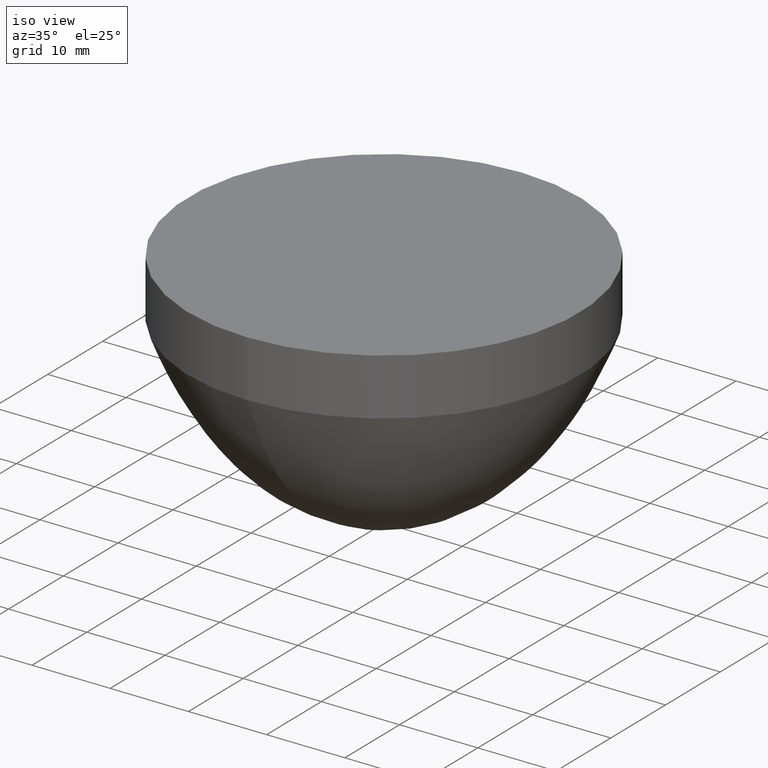
[diagram: clean part render]
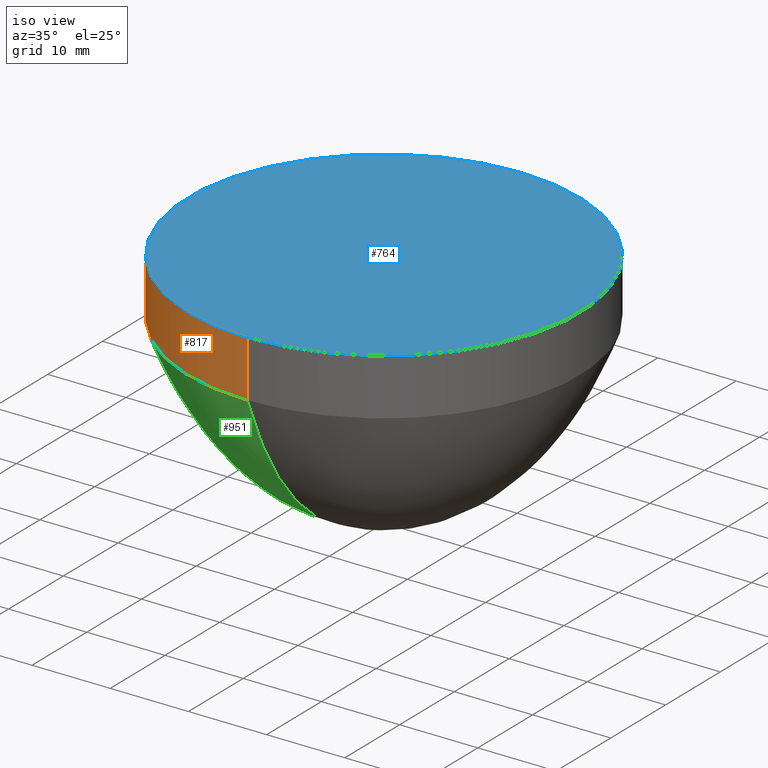
[diagram: same view with three faces highlighted in distinct colors, each labeled with its STEP entity id]
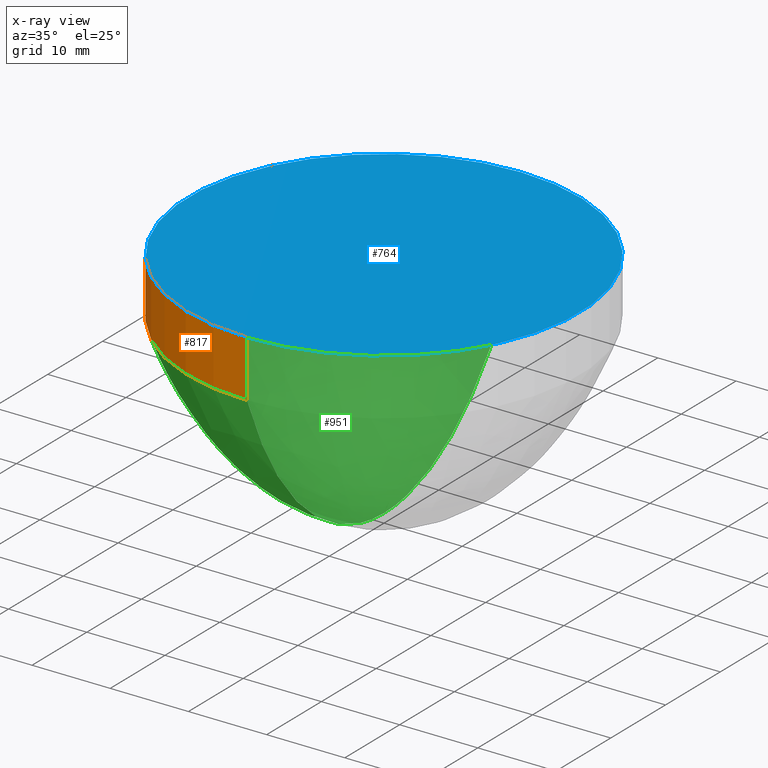
[diagram: x-ray of the same camera — body ghosted, the three highlighted faces saturated]
A machine part, iso view with three faces highlighted in distinct colors.
The next image is the same camera in x-ray (body ghosted, the three faces saturated) — at least one of them is partly hidden behind the body in this view.
Their STEP definitions:

[orange] entity #817 — the highlighted cylindrical surface (partial cylindrical patch) has radius 25 mm, axis along (0, 0, -1).
#5 = CIRCLE ( 'NONE', #157, 25.00000000000000000 ) ;
#12 = DIRECTION ( 'NONE',  ( 0.000000000000000000, 0.000000000000000000, -1.000000000000000000 ) ) ;
#47 = DIRECTION ( 'NONE',  ( 0.000000000000000000, 1.000000000000000000, 0.000000000000000000 ) ) ;
#51 = LINE ( 'NONE', #130, #173 ) ;
#72 = DIRECTION ( 'NONE',  ( 0.000000000000000000, 0.000000000000000000, -1.000000000000000000 ) ) ;
#79 = ORIENTED_EDGE ( 'NONE', *, *, #646, .T. ) ;
#103 = AXIS2_PLACEMENT_3D ( 'NONE', #321, #879, #390 ) ;
#130 = CARTESIAN_POINT ( 'NONE',  ( 3.061616997868383043E-15, -25.00000000000000000, 31.34250000000000114 ) ) ;
#157 = AXIS2_PLACEMENT_3D ( 'NONE', #852, #12, #1001 ) ;
#167 = EDGE_CURVE ( 'NONE', #693, #762, #5, .T. ) ;
#173 = VECTOR ( 'NONE', #1064, 1000.000000000000000 ) ;
#229 = EDGE_CURVE ( 'NONE', #762, #415, #457, .T. ) ;
#230 = AXIS2_PLACEMENT_3D ( 'NONE', #889, #464, #47 ) ;
#241 = CARTESIAN_POINT ( 'NONE',  ( 0.000000000000000000, 25.00000000000000000, 22.59373731387159978 ) ) ;
#266 = ORIENTED_EDGE ( 'NONE', *, *, #229, .T. ) ;
#274 = ORIENTED_EDGE ( 'NONE', *, *, #167, .T. ) ;
#311 = CARTESIAN_POINT ( 'NONE',  ( 0.000000000000000000, 25.00000000000000000, 29.85000000000000142 ) ) ;
#321 = CARTESIAN_POINT ( 'NONE',  ( 0.000000000000000000, 0.000000000000000000, 22.59373731387159978 ) ) ;
#390 = DIRECTION ( 'NONE',  ( 0.000000000000000000, 1.000000000000000000, 0.000000000000000000 ) ) ;
#415 = VERTEX_POINT ( 'NONE', #241 ) ;
#457 = LINE ( 'NONE', #626, #783 ) ;
#464 = DIRECTION ( 'NONE',  ( 0.000000000000000000, 0.000000000000000000, -1.000000000000000000 ) ) ;
#560 = CYLINDRICAL_SURFACE ( 'NONE', #230, 25.00000000000000000 ) ;
#626 = CARTESIAN_POINT ( 'NONE',  ( 0.000000000000000000, 25.00000000000000000, 31.34250000000000114 ) ) ;
#646 = EDGE_CURVE ( 'NONE', #415, #839, #955, .T. ) ;
#682 = EDGE_CURVE ( 'NONE', #693, #839, #51, .T. ) ;
#693 = VERTEX_POINT ( 'NONE', #1058 ) ;
#756 = EDGE_LOOP ( 'NONE', ( #918, #274, #266, #79 ) ) ;
#762 = VERTEX_POINT ( 'NONE', #311 ) ;
#783 = VECTOR ( 'NONE', #72, 1000.000000000000000 ) ;
#817 = ADVANCED_FACE ( 'NONE', ( #991 ), #560, .T. ) ;
#839 = VERTEX_POINT ( 'NONE', #981 ) ;
#852 = CARTESIAN_POINT ( 'NONE',  ( 0.000000000000000000, 0.000000000000000000, 29.85000000000000142 ) ) ;
#879 = DIRECTION ( 'NONE',  ( 0.000000000000000000, 0.000000000000000000, 1.000000000000000000 ) ) ;
#889 = CARTESIAN_POINT ( 'NONE',  ( 0.000000000000000000, 0.000000000000000000, 31.34250000000000114 ) ) ;
#918 = ORIENTED_EDGE ( 'NONE', *, *, #682, .F. ) ;
#955 = CIRCLE ( 'NONE', #103, 25.00000000000000000 ) ;
#981 = CARTESIAN_POINT ( 'NONE',  ( 3.061616997868383043E-15, -25.00000000000000000, 22.59373731387159978 ) ) ;
#991 = FACE_OUTER_BOUND ( 'NONE', #756, .T. ) ;
#1001 = DIRECTION ( 'NONE',  ( 0.000000000000000000, 1.000000000000000000, 0.000000000000000000 ) ) ;
#1058 = CARTESIAN_POINT ( 'NONE',  ( 3.061616997868383043E-15, -25.00000000000000000, 29.85000000000000142 ) ) ;
#1064 = DIRECTION ( 'NONE',  ( 0.000000000000000000, 0.000000000000000000, -1.000000000000000000 ) ) ;

[blue] entity #764 — the highlighted planar face has unit normal (0, 0, 1).
#5 = CIRCLE ( 'NONE', #157, 25.00000000000000000 ) ;
#12 = DIRECTION ( 'NONE',  ( 0.000000000000000000, 0.000000000000000000, -1.000000000000000000 ) ) ;
#145 = PLANE ( 'NONE',  #797 ) ;
#157 = AXIS2_PLACEMENT_3D ( 'NONE', #852, #12, #1001 ) ;
#167 = EDGE_CURVE ( 'NONE', #693, #762, #5, .T. ) ;
#217 = DIRECTION ( 'NONE',  ( 0.000000000000000000, 0.000000000000000000, 1.000000000000000000 ) ) ;
#259 = DIRECTION ( 'NONE',  ( 0.000000000000000000, 0.000000000000000000, -1.000000000000000000 ) ) ;
#291 = AXIS2_PLACEMENT_3D ( 'NONE', #924, #259, #577 ) ;
#311 = CARTESIAN_POINT ( 'NONE',  ( 0.000000000000000000, 25.00000000000000000, 29.85000000000000142 ) ) ;
#312 = CIRCLE ( 'NONE', #291, 25.00000000000000000 ) ;
#385 = DIRECTION ( 'NONE',  ( 1.000000000000000000, 0.000000000000000000, 0.000000000000000000 ) ) ;
#403 = EDGE_CURVE ( 'NONE', #762, #693, #312, .T. ) ;
#483 = CARTESIAN_POINT ( 'NONE',  ( 0.000000000000000000, 0.000000000000000000, 29.85000000000000142 ) ) ;
#504 = ORIENTED_EDGE ( 'NONE', *, *, #403, .F. ) ;
#577 = DIRECTION ( 'NONE',  ( 0.000000000000000000, 1.000000000000000000, 0.000000000000000000 ) ) ;
#693 = VERTEX_POINT ( 'NONE', #1058 ) ;
#762 = VERTEX_POINT ( 'NONE', #311 ) ;
#764 = ADVANCED_FACE ( 'NONE', ( #901 ), #145, .T. ) ;
#797 = AXIS2_PLACEMENT_3D ( 'NONE', #483, #217, #385 ) ;
#845 = ORIENTED_EDGE ( 'NONE', *, *, #167, .F. ) ;
#852 = CARTESIAN_POINT ( 'NONE',  ( 0.000000000000000000, 0.000000000000000000, 29.85000000000000142 ) ) ;
#901 = FACE_OUTER_BOUND ( 'NONE', #929, .T. ) ;
#924 = CARTESIAN_POINT ( 'NONE',  ( 0.000000000000000000, 0.000000000000000000, 29.85000000000000142 ) ) ;
#929 = EDGE_LOOP ( 'NONE', ( #504, #845 ) ) ;
#1001 = DIRECTION ( 'NONE',  ( 0.000000000000000000, 1.000000000000000000, 0.000000000000000000 ) ) ;
#1058 = CARTESIAN_POINT ( 'NONE',  ( 3.061616997868383043E-15, -25.00000000000000000, 29.85000000000000142 ) ) ;

[green] entity #951 — the highlighted face is a freeform B-spline surface patch.
#2 = CARTESIAN_POINT ( 'NONE',  ( -2.934049622957196258E-15, -23.95833333333330017, 20.01530144149420209 ) ) ;
#7 = CARTESIAN_POINT ( 'NONE',  ( -2.615131185679247637E-15, -21.35416666666669983, 14.78835382285140021 ) ) ;
#10 = CARTESIAN_POINT ( 'NONE',  ( -48.95833333333339255, -24.47916666666669627, 21.25884004741030253 ) ) ;
#14 = CARTESIAN_POINT ( 'NONE',  ( 0.000000000000000000, 4.427083333333329485, 0.5233451287309639488 ) ) ;
#15 = CARTESIAN_POINT ( 'NONE',  ( 0.000000000000000000, 18.22916666666669983, 10.10510103233170121 ) ) ;
#16 = CARTESIAN_POINT ( 'NONE',  ( -2.551347498223648427E-16, -2.083333333333330373, 0.1138825118972520006 ) ) ;
#18 = CARTESIAN_POINT ( 'NONE',  ( 0.000000000000000000, 20.05208333333330017, 12.66273615372799988 ) ) ;
#20 = CARTESIAN_POINT ( 'NONE',  ( -31.77083333333339255, -15.88541666666669627, 7.397623930349159771 ) ) ;
#21 = CARTESIAN_POINT ( 'NONE',  ( 0.000000000000000000, 1.041666666666670071, 0.02708659160149350098 ) ) ;
#25 = CARTESIAN_POINT ( 'NONE',  ( -33.85416666666659324, 16.92708333333329662, 8.528542936560711496 ) ) ;
#28 = CARTESIAN_POINT ( 'NONE',  ( 0.000000000000000000, 13.80208333333330017, 5.440133815030280040 ) ) ;
#31 = CARTESIAN_POINT ( 'NONE',  ( 0.000000000000000000, 17.70833333333329662, 9.451398195364669519 ) ) ;
#32 = CARTESIAN_POINT ( 'NONE',  ( 0.000000000000000000, 0.2604166666666670182, 0.000000000000000000 ) ) ;
#34 = CARTESIAN_POINT ( 'NONE',  ( -7.016205620115047349E-16, -5.729166666666669627, 0.8817523654343040196 ) ) ;
#38 = CARTESIAN_POINT ( 'NONE',  ( 0.000000000000000000, 16.92708333333329662, 8.528542936560711496 ) ) ;
#39 = CARTESIAN_POINT ( 'NONE',  ( -2.604166666666659857, 1.302083333333329929, 0.04334392892933099789 ) ) ;
#41 = CARTESIAN_POINT ( 'NONE',  ( -1.179998217928439795E-15, -9.635416666666671404, 2.551803787334469664 ) ) ;
#45 = CARTESIAN_POINT ( 'NONE',  ( -1.116214530472847586E-15, -9.114583333333330373, 2.274978497457980087 ) ) ;
#49 = CARTESIAN_POINT ( 'NONE',  ( -19.79166666666665719, 9.895833333333328596, 2.696745851897610180 ) ) ;
#53 = CARTESIAN_POINT ( 'NONE',  ( 0.000000000000000000, 9.635416666666671404, 2.551803787334469664 ) ) ;
#56 = CARTESIAN_POINT ( 'NONE',  ( 0.000000000000000000, 11.97916666666669983, 4.021656314591459669 ) ) ;
#57 = CARTESIAN_POINT ( 'NONE',  ( -2.742698560590422983E-15, -22.39583333333330373, 16.70365824749779904 ) ) ;
#60 = CARTESIAN_POINT ( 'NONE',  ( -1.211890061656234420E-15, -9.895833333333328596, 2.696745851897610180 ) ) ;
#62 = CARTESIAN_POINT ( 'NONE',  ( 0.000000000000000000, 5.729166666666669627, 0.8817523654343040196 ) ) ;
#64 = CARTESIAN_POINT ( 'NONE',  ( 0.000000000000000000, 7.291666666666670515, 1.439713985089339898 ) ) ;
#68 = CARTESIAN_POINT ( 'NONE',  ( -2.902157779229408929E-15, -23.69791666666669983, 19.42245672759580088 ) ) ;
#70 = CARTESIAN_POINT ( 'NONE',  ( -47.91666666666658614, -23.95833333333329307, 20.01530144149420209 ) ) ;
#74 = CARTESIAN_POINT ( 'NONE',  ( -49.47916666666659324, -24.73958333333329662, 21.90952063993099941 ) ) ;
#77 = CARTESIAN_POINT ( 'NONE',  ( 0.000000000000000000, 19.01041666666669983, 11.14726954152989791 ) ) ;
#81 = CARTESIAN_POINT ( 'NONE',  ( -11.45833333333333748, -5.729166666666667851, 0.8817523654343040196 ) ) ;
#83 = CARTESIAN_POINT ( 'NONE',  ( -43.22916666666659324, 21.61458333333330373, 15.24763873080519794 ) ) ;
#87 = CARTESIAN_POINT ( 'NONE',  ( -2.806482248046021700E-15, -22.91666666666669983, 17.74455419526839961 ) ) ;
#89 = CARTESIAN_POINT ( 'NONE',  ( 0.000000000000000000, 0.000000000000000000, 0.000000000000000000 ) ) ;
#91 = CARTESIAN_POINT ( 'NONE',  ( 0.000000000000000000, 13.80208333333330017, 5.440133815030280040 ) ) ;
#92 = CARTESIAN_POINT ( 'NONE',  ( -2.083333333333339699, 1.041666666666670071, 0.02708659160149350098 ) ) ;
#94 = ORIENTED_EDGE ( 'NONE', *, *, #646, .F. ) ;
#95 = CARTESIAN_POINT ( 'NONE',  ( 0.000000000000000000, 25.00000000000000000, 22.59373731387159978 ) ) ;
#96 = CARTESIAN_POINT ( 'NONE',  ( -7.291666666666659857, 3.645833333333330817, 0.3535786717714339833 ) ) ;
#97 = CARTESIAN_POINT ( 'NONE',  ( 0.000000000000000000, 13.54166666666669983, 5.221644257796890010 ) ) ;
#100 = CARTESIAN_POINT ( 'NONE',  ( -4.464858121891388568E-16, -3.645833333333330373, 0.3535786717714339833 ) ) ;
#101 = CARTESIAN_POINT ( 'NONE',  ( -8.333333333333337478, -4.166666666666668739, 0.4630318066237559815 ) ) ;
#102 = CARTESIAN_POINT ( 'NONE',  ( 0.000000000000000000, 13.02083333333330017, 4.800734322623869232 ) ) ;
#103 = AXIS2_PLACEMENT_3D ( 'NONE', #321, #879, #390 ) ;
#105 = CARTESIAN_POINT ( 'NONE',  ( 0.000000000000000000, 0.000000000000000000, 0.000000000000000000 ) ) ;
#107 = CARTESIAN_POINT ( 'NONE',  ( 0.000000000000000000, 14.32291666666670160, 5.894061955706379585 ) ) ;
#111 = CARTESIAN_POINT ( 'NONE',  ( -1.658375873845378306E-15, -13.54166666666669983, 5.221644257796890010 ) ) ;
#112 = CARTESIAN_POINT ( 'NONE',  ( -3.189184372779570394E-17, -0.2604166666666670182, 0.000000000000000000 ) ) ;
#114 = CARTESIAN_POINT ( 'NONE',  ( -1.211890061656234420E-15, -9.895833333333328596, 2.696745851897610180 ) ) ;
#117 = CARTESIAN_POINT ( 'NONE',  ( -35.41666666666658614, 17.70833333333330017, 9.451398195364671295 ) ) ;
#118 = CARTESIAN_POINT ( 'NONE',  ( 0.000000000000000000, 0.000000000000000000, 0.000000000000000000 ) ) ;
#120 = CARTESIAN_POINT ( 'NONE',  ( -9.248634681060737195E-16, -7.552083333333329485, 1.546627555214010075 ) ) ;
#123 = CARTESIAN_POINT ( 'NONE',  ( -9.886471555616659286E-16, -8.072916666666671404, 1.772764951032109959 ) ) ;
#125 = CARTESIAN_POINT ( 'NONE',  ( 0.000000000000000000, 8.333333333333330373, 1.891988625122589918 ) ) ;
#128 = CARTESIAN_POINT ( 'NONE',  ( -17.70833333333333570, -8.854166666666667851, 2.143095489030910183 ) ) ;
#134 = CARTESIAN_POINT ( 'NONE',  ( -1.498916655206391965E-15, -12.23958333333330017, 4.208775266709250396 ) ) ;
#136 = FACE_OUTER_BOUND ( 'NONE', #596, .T. ) ;
#138 = CARTESIAN_POINT ( 'NONE',  ( -15.10416666666665719, -7.552083333333327708, 1.546627555214010075 ) ) ;
#140 = CARTESIAN_POINT ( 'NONE',  ( 0.000000000000000000, 5.989583333333330373, 0.9649155050060189698 ) ) ;
#143 = CARTESIAN_POINT ( 'NONE',  ( 0.000000000000000000, 12.23958333333330017, 4.208775266709250396 ) ) ;
#147 = CARTESIAN_POINT ( 'NONE',  ( -2.423780123312473574E-15, -19.79166666666669627, 12.26966891731320075 ) ) ;
#149 = CARTESIAN_POINT ( 'NONE',  ( -41.14583333333338544, -20.57291666666669272, 13.48022620380510084 ) ) ;
#152 = CARTESIAN_POINT ( 'NONE',  ( -2.934049622957196258E-15, -23.95833333333330017, 20.01530144149420209 ) ) ;
#154 = CARTESIAN_POINT ( 'NONE',  ( -2.359996435856874068E-15, -19.27083333333330017, 11.51193404118749974 ) ) ;
#159 = CARTESIAN_POINT ( 'NONE',  ( -38.54166666666658614, 19.27083333333329662, 11.51193404118749797 ) ) ;
#161 = VERTEX_POINT ( 'NONE', #89 ) ;
#165 = CARTESIAN_POINT ( 'NONE',  ( -46.35416666666659324, 23.17708333333330017, 18.28707795603439834 ) ) ;
#169 = CARTESIAN_POINT ( 'NONE',  ( -2.328104592129086739E-15, -19.01041666666669983, 11.14726954152989791 ) ) ;
#170 = CARTESIAN_POINT ( 'NONE',  ( -2.997833310412796158E-15, -24.47916666666669983, 21.25884004741030253 ) ) ;
#174 = CARTESIAN_POINT ( 'NONE',  ( 0.000000000000000000, 4.947916666666669627, 0.6553020603301110691 ) ) ;
#176 = B_SPLINE_CURVE_WITH_KNOTS ( 'NONE', 3,
 ( #95, #940, #190, #528, #625, #874, #456, #1048, #796, #364, #718, #433, #775, #18, #368, #694, #863, #607, #439, #286, #185, #619, #703, #521, #197, #781, #1031, #534, #107, #28, #869, #469, #222, #306, #56, #325, #653, #727, #636, #554, #476, #884, #802, #125, #643, #972, #546, #657, #395, #140, #62, #212, #806, #722, #1053, #228, #735, #815, #400, #820, #317, #569, #739, #649, #977, #1069 ),
 .UNSPECIFIED., .F., .F.,
 ( 4, 2, 2, 2, 2, 2, 2, 2, 2, 2, 2, 2, 2, 2, 2, 2, 2, 2, 2, 2, 2, 2, 2, 2, 2, 2, 2, 2, 2, 2, 2, 2, 4 ),
 ( -1.000000000000000000, -0.9687500000000000000, -0.9375000000000000000, -0.9062500000000000000, -0.8750000000000000000, -0.8437500000000000000, -0.8125000000000000000, -0.7812500000000000000, -0.7500000000000000000, -0.7187500000000000000, -0.6875000000000000000, -0.6562500000000000000, -0.6250000000000000000, -0.5937500000000000000, -0.5625000000000000000, -0.5312500000000000000, -0.5000000000000000000, -0.4687500000000000000, -0.4375000000000000000, -0.4062500000000000000, -0.3750000000000000000, -0.3437500000000000000, -0.3125000000000000000, -0.2812500000000000000, -0.2500000000000000000, -0.2187500000000000000, -0.1875000000000000000, -0.1562500000000000000, -0.1250000000000000000, -0.09375000000000000000, -0.06250000000000000000, -0.03125000000000000000, 0.000000000000000000 ),
 .UNSPECIFIED. ) ;
#177 = CARTESIAN_POINT ( 'NONE',  ( -30.20833333333339610, 15.10416666666669983, 6.618331575722379512 ) ) ;
#181 = CARTESIAN_POINT ( 'NONE',  ( -5.102694996447308687E-16, -4.166666666666670515, 0.4630318066237559815 ) ) ;
#182 = CARTESIAN_POINT ( 'NONE',  ( -2.168645373490100399E-15, -17.70833333333329662, 9.451398195364669519 ) ) ;
#183 = CARTESIAN_POINT ( 'NONE',  ( -5.729166666666658969, -2.864583333333329485, 0.2172071281811370214 ) ) ;
#185 = CARTESIAN_POINT ( 'NONE',  ( 0.000000000000000000, 17.44791666666669983, 9.136448106880079578 ) ) ;
#186 = CARTESIAN_POINT ( 'NONE',  ( -6.378368745559128216E-16, -5.208333333333330373, 0.7269456000648499838 ) ) ;
#187 = CARTESIAN_POINT ( 'NONE',  ( -1.594592186389778800E-15, -13.02083333333330017, 4.800734322623869232 ) ) ;
#188 = CARTESIAN_POINT ( 'NONE',  ( 0.000000000000000000, 2.864583333333329929, 0.2172071281811369936 ) ) ;
#190 = CARTESIAN_POINT ( 'NONE',  ( 0.000000000000000000, 24.47916666666669983, 21.25884004741030253 ) ) ;
#193 = CARTESIAN_POINT ( 'NONE',  ( -30.72916666666660035, -15.36458333333329662, 6.871724550144929111 ) ) ;
#195 = CARTESIAN_POINT ( 'NONE',  ( -2.604166666666659857, -1.302083333333329929, 0.04334392892933099789 ) ) ;
#197 = CARTESIAN_POINT ( 'NONE',  ( 0.000000000000000000, 15.88541666666669627, 7.397623930349159771 ) ) ;
#200 = CARTESIAN_POINT ( 'NONE',  ( 0.000000000000000000, 15.36458333333330195, 6.871724550144929999 ) ) ;
#201 = CARTESIAN_POINT ( 'NONE',  ( -1.041666666666665853, -0.5208333333333329263, 0.005414622185026030966 ) ) ;
#203 = CARTESIAN_POINT ( 'NONE',  ( -1.371349280295217211E-15, -11.19791666666669983, 3.489552552347880088 ) ) ;
#204 = CARTESIAN_POINT ( 'NONE',  ( -1.179998217928439795E-15, -9.635416666666671404, 2.551803787334469664 ) ) ;
#206 = CARTESIAN_POINT ( 'NONE',  ( -6.770833333333337478, -3.385416666666668739, 0.3044389143989399971 ) ) ;
#208 = CARTESIAN_POINT ( 'NONE',  ( -1.020538999289460554E-15, -8.333333333333330373, 1.891988625122589918 ) ) ;
#210 = CARTESIAN_POINT ( 'NONE',  ( 0.000000000000000000, 11.19791666666669983, 3.489552552347880088 ) ) ;
#212 = CARTESIAN_POINT ( 'NONE',  ( 0.000000000000000000, 5.208333333333330373, 0.7269456000648499838 ) ) ;
#215 = CARTESIAN_POINT ( 'NONE',  ( -25.52083333333339255, -12.76041666666669627, 4.598314498066849332 ) ) ;
#220 = CARTESIAN_POINT ( 'NONE',  ( -16.66666666666665719, -8.333333333333328596, 1.891988625122589918 ) ) ;
#222 = CARTESIAN_POINT ( 'NONE',  ( 0.000000000000000000, 12.76041666666669983, 4.598314498066850220 ) ) ;
#226 = CARTESIAN_POINT ( 'NONE',  ( -21.35416666666660035, 10.67708333333330017, 3.158602740968170064 ) ) ;
#228 = CARTESIAN_POINT ( 'NONE',  ( 0.000000000000000000, 3.645833333333330373, 0.3535786717714339833 ) ) ;
#236 = CARTESIAN_POINT ( 'NONE',  ( -2.838374091773809423E-15, -23.17708333333330373, 18.28707795603439834 ) ) ;
#239 = CARTESIAN_POINT ( 'NONE',  ( -44.79166666666660035, 22.39583333333330373, 16.70365824749779904 ) ) ;
#241 = CARTESIAN_POINT ( 'NONE',  ( 0.000000000000000000, 25.00000000000000000, 22.59373731387159978 ) ) ;
#243 = CARTESIAN_POINT ( 'NONE',  ( -45.83333333333339255, 22.91666666666669983, 17.74455419526839961 ) ) ;
#245 = ORIENTED_EDGE ( 'NONE', *, *, #426, .F. ) ;
#251 = CARTESIAN_POINT ( 'NONE',  ( -2.838374091773809423E-15, -23.17708333333330373, 18.28707795603439834 ) ) ;
#255 = CARTESIAN_POINT ( 'NONE',  ( 0.000000000000000000, 5.729166666666669627, 0.8817523654343040196 ) ) ;
#256 = CARTESIAN_POINT ( 'NONE',  ( 0.000000000000000000, 24.73958333333330017, 21.90952063993099941 ) ) ;
#260 = CARTESIAN_POINT ( 'NONE',  ( -47.39583333333339255, -23.69791666666669627, 19.42245672759580088 ) ) ;
#264 = CARTESIAN_POINT ( 'NONE',  ( -33.85416666666659324, -16.92708333333329662, 8.528542936560711496 ) ) ;
#270 = CARTESIAN_POINT ( 'NONE',  ( -29.16666666666659680, 14.58333333333330195, 6.129499861953730644 ) ) ;
#275 = CARTESIAN_POINT ( 'NONE',  ( -1.403241124023004934E-15, -11.45833333333330195, 3.662044769638530095 ) ) ;
#277 = CARTESIAN_POINT ( 'NONE',  ( -9.895833333333339255, -4.947916666666669627, 0.6553020603301110691 ) ) ;
#278 = CARTESIAN_POINT ( 'NONE',  ( -26.04166666666659324, 13.02083333333330195, 4.800734322623869232 ) ) ;
#279 = CARTESIAN_POINT ( 'NONE',  ( -1.594592186389778603E-16, -1.302083333333329929, 0.04334392892933099789 ) ) ;
#281 = CARTESIAN_POINT ( 'NONE',  ( 0.000000000000000000, 0.000000000000000000, 0.000000000000000000 ) ) ;
#283 = CARTESIAN_POINT ( 'NONE',  ( -2.232429060945699905E-15, -18.22916666666669983, 10.10510103233170121 ) ) ;
#284 = CARTESIAN_POINT ( 'NONE',  ( 0.000000000000000000, 1.822916666666670071, 0.08674189912522990709 ) ) ;
#286 = CARTESIAN_POINT ( 'NONE',  ( 0.000000000000000000, 17.70833333333329662, 9.451398195364669519 ) ) ;
#290 = CARTESIAN_POINT ( 'NONE',  ( -2.041077998578925841E-15, -16.66666666666669627, 8.235589448737830054 ) ) ;
#296 = CARTESIAN_POINT ( 'NONE',  ( -8.929716243782786997E-16, -7.291666666666670515, 1.439713985089339898 ) ) ;
#298 = CARTESIAN_POINT ( 'NONE',  ( -13.54166666666665542, 6.770833333333329485, 1.237893108845469881 ) ) ;
#301 = CARTESIAN_POINT ( 'NONE',  ( -9.886471555616659286E-16, -8.072916666666671404, 1.772764951032109959 ) ) ;
#304 = CARTESIAN_POINT ( 'NONE',  ( 0.000000000000000000, 6.510416666666669627, 1.142985929082689811 ) ) ;
#306 = CARTESIAN_POINT ( 'NONE',  ( 0.000000000000000000, 12.23958333333330017, 4.208775266709250396 ) ) ;
#309 = CARTESIAN_POINT ( 'NONE',  ( -8.929716243782786997E-16, -7.291666666666670515, 1.439713985089339898 ) ) ;
#315 = CARTESIAN_POINT ( 'NONE',  ( -1.403241124023004934E-15, -11.45833333333330195, 3.662044769638530095 ) ) ;
#317 = CARTESIAN_POINT ( 'NONE',  ( 0.000000000000000000, 1.822916666666670071, 0.08674189912522990709 ) ) ;
#319 = CARTESIAN_POINT ( 'NONE',  ( 0.000000000000000000, 11.97916666666669983, 4.021656314591459669 ) ) ;
#321 = CARTESIAN_POINT ( 'NONE',  ( 0.000000000000000000, 0.000000000000000000, 22.59373731387159978 ) ) ;
#325 = CARTESIAN_POINT ( 'NONE',  ( 0.000000000000000000, 11.45833333333330195, 3.662044769638530095 ) ) ;
#328 = CARTESIAN_POINT ( 'NONE',  ( -2.519455654495860803E-15, -20.57291666666669627, 13.48022620380510084 ) ) ;
#330 = CARTESIAN_POINT ( 'NONE',  ( 0.000000000000000000, 22.39583333333330373, 16.70365824749779904 ) ) ;
#332 = CARTESIAN_POINT ( 'NONE',  ( -1.562700342661991077E-15, -12.76041666666669983, 4.598314498066850220 ) ) ;
#335 = CARTESIAN_POINT ( 'NONE',  ( 0.000000000000000000, 21.61458333333330017, 15.24763873080519971 ) ) ;
#340 = CARTESIAN_POINT ( 'NONE',  ( -47.39583333333339255, 23.69791666666670338, 19.42245672759580088 ) ) ;
#344 = CARTESIAN_POINT ( 'NONE',  ( -2.742698560590422983E-15, -22.39583333333330373, 16.70365824749779904 ) ) ;
#345 = CARTESIAN_POINT ( 'NONE',  ( 0.000000000000000000, 23.95833333333330017, 20.01530144149420209 ) ) ;
#351 = CARTESIAN_POINT ( 'NONE',  ( -2.551347498223648131E-15, -20.83333333333329662, 13.90464506263379896 ) ) ;
#353 = CARTESIAN_POINT ( 'NONE',  ( -9.895833333333339255, 4.947916666666669627, 0.6553020603301110691 ) ) ;
#354 = CARTESIAN_POINT ( 'NONE',  ( -1.785943248756553061E-15, -14.58333333333330017, 6.129499861953729756 ) ) ;
#357 = CARTESIAN_POINT ( 'NONE',  ( -6.378368745559127230E-17, -0.5208333333333330373, 0.005414622185026030099 ) ) ;
#361 = CARTESIAN_POINT ( 'NONE',  ( -36.45833333333339255, 18.22916666666669627, 10.10510103233170121 ) ) ;
#362 = CARTESIAN_POINT ( 'NONE',  ( -5.729166666666658969, 2.864583333333329929, 0.2172071281811370214 ) ) ;
#364 = CARTESIAN_POINT ( 'NONE',  ( 0.000000000000000000, 21.61458333333330017, 15.24763873080519971 ) ) ;
#368 = CARTESIAN_POINT ( 'NONE',  ( 0.000000000000000000, 19.79166666666669627, 12.26966891731320075 ) ) ;
#370 = CARTESIAN_POINT ( 'NONE',  ( -2.328104592129086739E-15, -19.01041666666669983, 11.14726954152989791 ) ) ;
#371 = CARTESIAN_POINT ( 'NONE',  ( -6.770833333333337478, 3.385416666666670071, 0.3044389143989399971 ) ) ;
#373 = CARTESIAN_POINT ( 'NONE',  ( -5.421613433725257899E-16, -4.427083333333329485, 0.5233451287309639488 ) ) ;
#377 = CARTESIAN_POINT ( 'NONE',  ( 0.000000000000000000, 17.44791666666669983, 9.136448106880079578 ) ) ;
#379 = CARTESIAN_POINT ( 'NONE',  ( -4.464858121891388568E-16, -3.645833333333330373, 0.3535786717714339833 ) ) ;
#381 = CARTESIAN_POINT ( 'NONE',  ( -1.594592186389778603E-16, -1.302083333333329929, 0.04334392892933099789 ) ) ;
#383 = CARTESIAN_POINT ( 'NONE',  ( -16.14583333333333925, 8.072916666666671404, 1.772764951032109737 ) ) ;
#388 = CARTESIAN_POINT ( 'NONE',  ( -14.58333333333333925, -7.291666666666667851, 1.439713985089339898 ) ) ;
#390 = DIRECTION ( 'NONE',  ( 0.000000000000000000, 1.000000000000000000, 0.000000000000000000 ) ) ;
#392 = CARTESIAN_POINT ( 'NONE',  ( -1.275673749111830376E-15, -10.41666666666670160, 3.000145458530130149 ) ) ;
#395 = CARTESIAN_POINT ( 'NONE',  ( 0.000000000000000000, 6.510416666666669627, 1.142985929082689811 ) ) ;
#398 = CARTESIAN_POINT ( 'NONE',  ( -18.22916666666665719, -9.114583333333328596, 2.274978497457980531 ) ) ;
#400 = CARTESIAN_POINT ( 'NONE',  ( 0.000000000000000000, 2.604166666666670071, 0.1791151418598460054 ) ) ;
#404 = CARTESIAN_POINT ( 'NONE',  ( -1.785943248756553061E-15, -14.58333333333330017, 6.129499861953729756 ) ) ;
#409 = CARTESIAN_POINT ( 'NONE',  ( -40.10416666666659324, 20.05208333333330017, 12.66273615372799810 ) ) ;
#414 = CARTESIAN_POINT ( 'NONE',  ( 0.000000000000000000, 23.17708333333330373, 18.28707795603439834 ) ) ;
#415 = VERTEX_POINT ( 'NONE', #241 ) ;
#417 = CARTESIAN_POINT ( 'NONE',  ( -3.029725154140583487E-15, -24.73958333333330017, 21.90952063993099941 ) ) ;
#421 = CARTESIAN_POINT ( 'NONE',  ( -2.806482248046021700E-15, -22.91666666666669983, 17.74455419526839961 ) ) ;
#423 = CARTESIAN_POINT ( 'NONE',  ( -40.10416666666659324, -20.05208333333329662, 12.66273615372799810 ) ) ;
#426 = EDGE_CURVE ( 'NONE', #839, #161, #535, .T. ) ;
#427 = CARTESIAN_POINT ( 'NONE',  ( -2.647023029407035754E-15, -21.61458333333330017, 15.24763873080519971 ) ) ;
#430 = CARTESIAN_POINT ( 'NONE',  ( -27.60416666666658969, -13.80208333333329485, 5.440133815030280040 ) ) ;
#431 = CARTESIAN_POINT ( 'NONE',  ( -2.083333333333339699, -1.041666666666669849, 0.02708659160149350098 ) ) ;
#433 = CARTESIAN_POINT ( 'NONE',  ( 0.000000000000000000, 20.83333333333329662, 13.90464506263379896 ) ) ;
#435 = CARTESIAN_POINT ( 'NONE',  ( -8.333333333333337478, 4.166666666666669627, 0.4630318066237559815 ) ) ;
#436 = CARTESIAN_POINT ( 'NONE',  ( -27.08333333333339255, -13.54166666666669627, 5.221644257796890010 ) ) ;
#439 = CARTESIAN_POINT ( 'NONE',  ( 0.000000000000000000, 18.22916666666669983, 10.10510103233170121 ) ) ;
#443 = CARTESIAN_POINT ( 'NONE',  ( -38.02083333333339255, -19.01041666666669627, 11.14726954152989968 ) ) ;
#447 = CARTESIAN_POINT ( 'NONE',  ( -5.102694996447308687E-16, -4.166666666666670515, 0.4630318066237559815 ) ) ;
#448 = CARTESIAN_POINT ( 'NONE',  ( 0.000000000000000000, 16.66666666666669627, 8.235589448737830054 ) ) ;
#451 = CARTESIAN_POINT ( 'NONE',  ( -6.059450308281178018E-16, -4.947916666666669627, 0.6553020603301110691 ) ) ;
#453 = CARTESIAN_POINT ( 'NONE',  ( -2.072969842306713170E-15, -16.92708333333329662, 8.528542936560711496 ) ) ;
#454 = CARTESIAN_POINT ( 'NONE',  ( -3.189184372779570025E-16, -2.604166666666670071, 0.1791151418598460054 ) ) ;
#456 = CARTESIAN_POINT ( 'NONE',  ( 0.000000000000000000, 22.91666666666669983, 17.74455419526839961 ) ) ;
#460 = CARTESIAN_POINT ( 'NONE',  ( -19.79166666666665719, -9.895833333333328596, 2.696745851897610180 ) ) ;
#467 = CARTESIAN_POINT ( 'NONE',  ( -1.020538999289460554E-15, -8.333333333333330373, 1.891988625122589918 ) ) ;
#469 = CARTESIAN_POINT ( 'NONE',  ( 0.000000000000000000, 13.02083333333330017, 4.800734322623869232 ) ) ;
#471 = CARTESIAN_POINT ( 'NONE',  ( -22.39583333333339610, 11.19791666666669983, 3.489552552347880532 ) ) ;
#474 = CARTESIAN_POINT ( 'NONE',  ( -9.248634681060737195E-16, -7.552083333333329485, 1.546627555214010075 ) ) ;
#476 = CARTESIAN_POINT ( 'NONE',  ( 0.000000000000000000, 9.635416666666671404, 2.551803787334469664 ) ) ;
#480 = CARTESIAN_POINT ( 'NONE',  ( 0.000000000000000000, 10.67708333333330017, 3.158602740968170064 ) ) ;
#486 = CARTESIAN_POINT ( 'NONE',  ( -2.168645373490100399E-15, -17.70833333333329662, 9.451398195364669519 ) ) ;
#488 = CARTESIAN_POINT ( 'NONE',  ( 0.000000000000000000, 20.05208333333330017, 12.66273615372799988 ) ) ;
#491 = CARTESIAN_POINT ( 'NONE',  ( -7.972960931948917666E-16, -6.510416666666669627, 1.142985929082689811 ) ) ;
#493 = CARTESIAN_POINT ( 'NONE',  ( -46.35416666666659324, -23.17708333333329662, 18.28707795603439834 ) ) ;
#496 = CARTESIAN_POINT ( 'NONE',  ( -7.335124057392997547E-16, -5.989583333333330373, 0.9649155050060189698 ) ) ;
#498 = CARTESIAN_POINT ( 'NONE',  ( -3.061616997868383043E-15, -25.00000000000000000, 22.59373731387159978 ) ) ;
#501 = CARTESIAN_POINT ( 'NONE',  ( 3.061616997868383043E-15, -25.00000000000000000, 22.59373731387159978 ) ) ;
#502 = CARTESIAN_POINT ( 'NONE',  ( -44.79166666666660035, -22.39583333333329662, 16.70365824749779904 ) ) ;
#505 = CARTESIAN_POINT ( 'NONE',  ( -49.99999999999999289, -24.99999999999999645, 22.59373731387159623 ) ) ;
#508 = ORIENTED_EDGE ( 'NONE', *, *, #597, .T. ) ;
#511 = CARTESIAN_POINT ( 'NONE',  ( -8.854166666666657193, -4.427083333333328596, 0.5233451287309639488 ) ) ;
#512 = CARTESIAN_POINT ( 'NONE',  ( -29.16666666666659680, -14.58333333333329840, 6.129499861953730644 ) ) ;
#517 = CARTESIAN_POINT ( 'NONE',  ( 0.000000000000000000, 3.645833333333330373, 0.3535786717714339833 ) ) ;
#518 = CARTESIAN_POINT ( 'NONE',  ( -32.29166666666659324, 16.14583333333330017, 7.670129306182640327 ) ) ;
#519 = CARTESIAN_POINT ( 'NONE',  ( -6.378368745559127230E-17, -0.5208333333333330373, 0.005414622185026030099 ) ) ;
#521 = CARTESIAN_POINT ( 'NONE',  ( 0.000000000000000000, 16.14583333333330017, 7.670129306182640327 ) ) ;
#524 = CARTESIAN_POINT ( 'NONE',  ( -8.854166666666657193, 4.427083333333330373, 0.5233451287309639488 ) ) ;
#525 = CARTESIAN_POINT ( 'NONE',  ( -2.136753529762313070E-15, -17.44791666666669983, 9.136448106880079578 ) ) ;
#526 = CARTESIAN_POINT ( 'NONE',  ( -0.5208333333333339255, -0.2604166666666669627, 0.000000000000000000 ) ) ;
#528 = CARTESIAN_POINT ( 'NONE',  ( 0.000000000000000000, 23.95833333333330017, 20.01530144149420209 ) ) ;
#531 = CARTESIAN_POINT ( 'NONE',  ( -28.64583333333339965, -14.32291666666669627, 5.894061955706379585 ) ) ;
#532 = CARTESIAN_POINT ( 'NONE',  ( -2.232429060945700200E-16, -1.822916666666670071, 0.08674189912522990709 ) ) ;
#534 = CARTESIAN_POINT ( 'NONE',  ( 0.000000000000000000, 14.58333333333330017, 6.129499861953729756 ) ) ;
#535 = B_SPLINE_CURVE_WITH_KNOTS ( 'NONE', 3,
 ( #501, #988, #1004, #152, #68, #251, #421, #344, #589, #826, #836, #765, #328, #681, #147, #911, #169, #593, #752, #486, #746, #841, #661, #655, #1071, #1082, #822, #404, #741, #572, #903, #993, #332, #666, #1024, #275, #203, #707, #791, #114, #41, #967, #954, #208, #301, #120, #296, #542, #632, #712, #34, #1036, #451, #373, #447, #100, #961, #857, #945, #613, #1041, #381, #786, #357, #853, #281 ),
 .UNSPECIFIED., .F., .F.,
 ( 4, 2, 2, 2, 2, 2, 2, 2, 2, 2, 2, 2, 2, 2, 2, 2, 2, 2, 2, 2, 2, 2, 2, 2, 2, 2, 2, 2, 2, 2, 2, 2, 4 ),
 ( -1.000000000000000000, -0.9687500000000000000, -0.9375000000000000000, -0.9062500000000000000, -0.8750000000000000000, -0.8437500000000000000, -0.8125000000000000000, -0.7812500000000000000, -0.7500000000000000000, -0.7187500000000000000, -0.6875000000000000000, -0.6562500000000000000, -0.6250000000000000000, -0.5937500000000000000, -0.5625000000000000000, -0.5312500000000000000, -0.5000000000000000000, -0.4687500000000000000, -0.4375000000000000000, -0.4062500000000000000, -0.3750000000000000000, -0.3437500000000000000, -0.3125000000000000000, -0.2812500000000000000, -0.2500000000000000000, -0.2187500000000000000, -0.1875000000000000000, -0.1562500000000000000, -0.1250000000000000000, -0.09375000000000000000, -0.06250000000000000000, -0.03125000000000000000, 0.000000000000000000 ),
 .UNSPECIFIED. ) ;
#539 = CARTESIAN_POINT ( 'NONE',  ( 0.000000000000000000, 16.14583333333330017, 7.670129306182640327 ) ) ;
#540 = CARTESIAN_POINT ( 'NONE',  ( 0.000000000000000000, 0.000000000000000000, 0.000000000000000000 ) ) ;
#542 = CARTESIAN_POINT ( 'NONE',  ( -8.291879369226866878E-16, -6.770833333333330373, 1.237893108845469881 ) ) ;
#544 = CARTESIAN_POINT ( 'NONE',  ( -22.39583333333339610, -11.19791666666669627, 3.489552552347880532 ) ) ;
#546 = CARTESIAN_POINT ( 'NONE',  ( 0.000000000000000000, 7.291666666666670515, 1.439713985089339898 ) ) ;
#550 = CARTESIAN_POINT ( 'NONE',  ( -24.47916666666659324, 12.23958333333330017, 4.208775266709250396 ) ) ;
#554 = CARTESIAN_POINT ( 'NONE',  ( 0.000000000000000000, 9.895833333333328596, 2.696745851897610180 ) ) ;
#558 = CARTESIAN_POINT ( 'NONE',  ( 0.000000000000000000, 9.895833333333328596, 2.696745851897610180 ) ) ;
#562 = CARTESIAN_POINT ( 'NONE',  ( 0.000000000000000000, 8.072916666666671404, 1.772764951032109959 ) ) ;
#565 = CARTESIAN_POINT ( 'NONE',  ( -49.99999999999999289, 25.00000000000000711, 22.59373731387159623 ) ) ;
#567 = CARTESIAN_POINT ( 'NONE',  ( -18.22916666666665719, 9.114583333333332149, 2.274978497457980531 ) ) ;
#569 = CARTESIAN_POINT ( 'NONE',  ( 0.000000000000000000, 1.302083333333329929, 0.04334392892933099789 ) ) ;
#572 = CARTESIAN_POINT ( 'NONE',  ( -1.690267717573165832E-15, -13.80208333333330017, 5.440133815030280040 ) ) ;
#574 = CARTESIAN_POINT ( 'NONE',  ( -42.70833333333339255, 21.35416666666669983, 14.78835382285140199 ) ) ;
#579 = CARTESIAN_POINT ( 'NONE',  ( -39.58333333333338544, -19.79166666666669272, 12.26966891731320253 ) ) ;
#582 = CARTESIAN_POINT ( 'NONE',  ( -11.97916666666665719, 5.989583333333330373, 0.9649155050060189698 ) ) ;
#584 = CARTESIAN_POINT ( 'NONE',  ( -45.83333333333339255, -22.91666666666669272, 17.74455419526839961 ) ) ;
#589 = CARTESIAN_POINT ( 'NONE',  ( -2.710806716862634866E-15, -22.13541666666669983, 16.20529410536409998 ) ) ;
#591 = CARTESIAN_POINT ( 'NONE',  ( -43.22916666666659324, -21.61458333333329307, 15.24763873080519794 ) ) ;
#593 = CARTESIAN_POINT ( 'NONE',  ( -2.264320904673487628E-15, -18.48958333333330017, 10.44385178771110034 ) ) ;
#594 = CARTESIAN_POINT ( 'NONE',  ( -44.27083333333339255, -22.13541666666668917, 16.20529410536410353 ) ) ;
#596 = EDGE_LOOP ( 'NONE', ( #245, #94, #508 ) ) ;
#597 = EDGE_CURVE ( 'NONE', #415, #161, #176, .T. ) ;
#599 = CARTESIAN_POINT ( 'NONE',  ( -1.881618779939939501E-15, -15.36458333333330195, 6.871724550144929999 ) ) ;
#603 = CARTESIAN_POINT ( 'NONE',  ( -10.41666666666665897, -5.208333333333329485, 0.7269456000648499838 ) ) ;
#604 = CARTESIAN_POINT ( 'NONE',  ( 0.000000000000000000, 18.48958333333330017, 10.44385178771110034 ) ) ;
#607 = CARTESIAN_POINT ( 'NONE',  ( 0.000000000000000000, 18.48958333333330017, 10.44385178771110034 ) ) ;
#610 = CARTESIAN_POINT ( 'NONE',  ( -1.977294311123326730E-15, -16.14583333333330017, 7.670129306182640327 ) ) ;
#611 = CARTESIAN_POINT ( 'NONE',  ( -1.275673749111830623E-16, -1.041666666666670071, 0.02708659160149350098 ) ) ;
#613 = CARTESIAN_POINT ( 'NONE',  ( -2.551347498223648427E-16, -2.083333333333330373, 0.1138825118972520006 ) ) ;
#615 = CARTESIAN_POINT ( 'NONE',  ( -28.64583333333339255, 14.32291666666669983, 5.894061955706379585 ) ) ;
#617 = CARTESIAN_POINT ( 'NONE',  ( 0.000000000000000000, 3.385416666666669627, 0.3044389143989399971 ) ) ;
#619 = CARTESIAN_POINT ( 'NONE',  ( 0.000000000000000000, 16.92708333333329662, 8.528542936560711496 ) ) ;
#622 = CARTESIAN_POINT ( 'NONE',  ( 0.000000000000000000, 15.88541666666669627, 7.397623930349159771 ) ) ;
#625 = CARTESIAN_POINT ( 'NONE',  ( 0.000000000000000000, 23.69791666666669983, 19.42245672759580088 ) ) ;
#629 = CARTESIAN_POINT ( 'NONE',  ( -13.54166666666665542, -6.770833333333327708, 1.237893108845469881 ) ) ;
#630 = CARTESIAN_POINT ( 'NONE',  ( 0.000000000000000000, 2.083333333333330373, 0.1138825118972520006 ) ) ;
#632 = CARTESIAN_POINT ( 'NONE',  ( -7.972960931948917666E-16, -6.510416666666669627, 1.142985929082689811 ) ) ;
#634 = CARTESIAN_POINT ( 'NONE',  ( -25.52083333333339255, 12.76041666666669805, 4.598314498066849332 ) ) ;
#636 = CARTESIAN_POINT ( 'NONE',  ( 0.000000000000000000, 10.41666666666670160, 3.000145458530130149 ) ) ;
#638 =( BOUNDED_SURFACE ( )  B_SPLINE_SURFACE ( 3, 3, ( 
 ( #811, #565, #505, #498 ),
 ( #256, #827, #74, #417 ),
 ( #927, #824, #10, #170 ),
 ( #345, #766, #70, #2 ),
 ( #996, #340, #260, #843 ),
 ( #414, #165, #493, #236 ),
 ( #755, #243, #584, #87 ),
 ( #330, #239, #502, #57 ),
 ( #1007, #675, #594, #683 ),
 ( #335, #83, #591, #427 ),
 ( #669, #574, #832, #7 ),
 ( #921, #769, #837, #351 ),
 ( #687, #905, #149, #1010 ),
 ( #488, #409, #423, #748 ),
 ( #1079, #915, #579, #664 ),
 ( #999, #159, #908, #154 ),
 ( #77, #759, #443, #370 ),
 ( #604, #1016, #709, #690 ),
 ( #15, #361, #778, #283 ),
 ( #31, #117, #958, #182 ),
 ( #377, #866, #931, #525 ),
 ( #38, #25, #264, #453 ),
 ( #448, #1037, #793, #290 ),
 ( #539, #518, #950, #610 ),
 ( #622, #1020, #20, #699 ),
 ( #200, #784, #193, #599 ),
 ( #704, #177, #789, #937 ),
 ( #871, #270, #512, #354 ),
 ( #1028, #615, #531, #849 ),
 ( #91, #854, #430, #771 ),
 ( #97, #860, #436, #111 ),
 ( #102, #278, #942, #187 ),
 ( #1033, #634, #215, #1062 ),
 ( #143, #550, #887, #134 ),
 ( #319, #1066, #639, #812 ),
 ( #985, #975, #731, #315 ),
 ( #210, #471, #544, #651 ),
 ( #480, #226, #715, #964 ),
 ( #809, #800, #882, #392 ),
 ( #558, #49, #460, #60 ),
 ( #53, #877, #724, #204 ),
 ( #1056, #567, #398, #45 ),
 ( #647, #970, #128, #979 ),
 ( #897, #737, #220, #467 ),
 ( #562, #383, #804, #123 ),
 ( #818, #892, #138, #474 ),
 ( #64, #720, #388, #309 ),
 ( #1044, #298, #629, #1051 ),
 ( #304, #662, #926, #491 ),
 ( #753, #582, #913, #496 ),
 ( #255, #920, #81, #1027 ),
 ( #698, #1015, #603, #186 ),
 ( #174, #353, #277, #1019 ),
 ( #14, #524, #511, #936 ),
 ( #859, #435, #101, #181 ),
 ( #517, #96, #777, #379 ),
 ( #617, #371, #206, #867 ),
 ( #188, #362, #183, #1045 ),
 ( #700, #1034, #691, #454 ),
 ( #630, #794, #850, #16 ),
 ( #284, #938, #1029, #532 ),
 ( #872, #39, #195, #279 ),
 ( #21, #92, #431, #611 ),
 ( #861, #716, #201, #519 ),
 ( #32, #943, #526, #112 ),
 ( #118, #540, #710, #105 ) ),
 .UNSPECIFIED., .F., .F., .T. ) 
 B_SPLINE_SURFACE_WITH_KNOTS ( ( 4, 2, 2, 2, 2, 2, 2, 2, 2, 2, 2, 2, 2, 2, 2, 2, 2, 2, 2, 2, 2, 2, 2, 2, 2, 2, 2, 2, 2, 2, 2, 2, 4 ),
 ( 4, 4 ),
 ( -1.000000000000000000, -0.9687500000000000000, -0.9375000000000000000, -0.9062500000000000000, -0.8750000000000000000, -0.8437500000000000000, -0.8125000000000000000, -0.7812500000000000000, -0.7500000000000000000, -0.7187500000000000000, -0.6875000000000000000, -0.6562500000000000000, -0.6250000000000000000, -0.5937500000000000000, -0.5625000000000000000, -0.5312500000000000000, -0.5000000000000000000, -0.4687500000000000000, -0.4375000000000000000, -0.4062500000000000000, -0.3750000000000000000, -0.3437500000000000000, -0.3125000000000000000, -0.2812500000000000000, -0.2500000000000000000, -0.2187500000000000000, -0.1875000000000000000, -0.1562500000000000000, -0.1250000000000000000, -0.09375000000000000000, -0.06250000000000000000, -0.03125000000000000000, 0.000000000000000000 ),
 ( 0.000000000000000000, 1.000000000000000000 ),
 .UNSPECIFIED. ) 
 GEOMETRIC_REPRESENTATION_ITEM ( )  RATIONAL_B_SPLINE_SURFACE ( (
 ( 1.000000000000000000, 0.3333333333333334259, 0.3333333333333334259, 1.000000000000000000),
 ( 1.000000000000000000, 0.3333333333333334259, 0.3333333333333334259, 1.000000000000000000),
 ( 1.000000000000000000, 0.3333333333333334259, 0.3333333333333334259, 1.000000000000000000),
 ( 1.000000000000000000, 0.3333333333333334259, 0.3333333333333334259, 1.000000000000000000),
 ( 1.000000000000000000, 0.3333333333333334259, 0.3333333333333334259, 1.000000000000000000),
 ( 1.000000000000000000, 0.3333333333333334259, 0.3333333333333334259, 1.000000000000000000),
 ( 1.000000000000000000, 0.3333333333333334259, 0.3333333333333334259, 1.000000000000000000),
 ( 1.000000000000000000, 0.3333333333333334259, 0.3333333333333334259, 1.000000000000000000),
 ( 1.000000000000000000, 0.3333333333333334259, 0.3333333333333334259, 1.000000000000000000),
 ( 1.000000000000000000, 0.3333333333333334259, 0.3333333333333334259, 1.000000000000000000),
 ( 1.000000000000000000, 0.3333333333333334259, 0.3333333333333334259, 1.000000000000000000),
 ( 1.000000000000000000, 0.3333333333333334259, 0.3333333333333334259, 1.000000000000000000),
 ( 1.000000000000000000, 0.3333333333333334259, 0.3333333333333334259, 1.000000000000000000),
 ( 1.000000000000000000, 0.3333333333333334259, 0.3333333333333334259, 1.000000000000000000),
 ( 1.000000000000000000, 0.3333333333333334259, 0.3333333333333334259, 1.000000000000000000),
 ( 1.000000000000000000, 0.3333333333333334259, 0.3333333333333334259, 1.000000000000000000),
 ( 1.000000000000000000, 0.3333333333333334259, 0.3333333333333334259, 1.000000000000000000),
 ( 1.000000000000000000, 0.3333333333333334259, 0.3333333333333334259, 1.000000000000000000),
 ( 1.000000000000000000, 0.3333333333333334259, 0.3333333333333334259, 1.000000000000000000),
 ( 1.000000000000000000, 0.3333333333333334259, 0.3333333333333334259, 1.000000000000000000),
 ( 1.000000000000000000, 0.3333333333333334259, 0.3333333333333334259, 1.000000000000000000),
 ( 1.000000000000000000, 0.3333333333333334259, 0.3333333333333334259, 1.000000000000000000),
 ( 1.000000000000000000, 0.3333333333333334259, 0.3333333333333334259, 1.000000000000000000),
 ( 1.000000000000000000, 0.3333333333333334259, 0.3333333333333334259, 1.000000000000000000),
 ( 1.000000000000000000, 0.3333333333333334259, 0.3333333333333334259, 1.000000000000000000),
 ( 1.000000000000000000, 0.3333333333333334259, 0.3333333333333334259, 1.000000000000000000),
 ( 1.000000000000000000, 0.3333333333333334259, 0.3333333333333334259, 1.000000000000000000),
 ( 1.000000000000000000, 0.3333333333333334259, 0.3333333333333334259, 1.000000000000000000),
 ( 1.000000000000000000, 0.3333333333333334259, 0.3333333333333334259, 1.000000000000000000),
 ( 1.000000000000000000, 0.3333333333333334259, 0.3333333333333334259, 1.000000000000000000),
 ( 1.000000000000000000, 0.3333333333333334259, 0.3333333333333334259, 1.000000000000000000),
 ( 1.000000000000000000, 0.3333333333333334259, 0.3333333333333334259, 1.000000000000000000),
 ( 1.000000000000000000, 0.3333333333333334259, 0.3333333333333334259, 1.000000000000000000),
 ( 1.000000000000000000, 0.3333333333333334259, 0.3333333333333334259, 1.000000000000000000),
 ( 1.000000000000000000, 0.3333333333333334259, 0.3333333333333334259, 1.000000000000000000),
 ( 1.000000000000000000, 0.3333333333333334259, 0.3333333333333334259, 1.000000000000000000),
 ( 1.000000000000000000, 0.3333333333333334259, 0.3333333333333334259, 1.000000000000000000),
 ( 1.000000000000000000, 0.3333333333333334259, 0.3333333333333334259, 1.000000000000000000),
 ( 1.000000000000000000, 0.3333333333333334259, 0.3333333333333334259, 1.000000000000000000),
 ( 1.000000000000000000, 0.3333333333333334259, 0.3333333333333334259, 1.000000000000000000),
 ( 1.000000000000000000, 0.3333333333333334259, 0.3333333333333334259, 1.000000000000000000),
 ( 1.000000000000000000, 0.3333333333333334259, 0.3333333333333334259, 1.000000000000000000),
 ( 1.000000000000000000, 0.3333333333333334259, 0.3333333333333334259, 1.000000000000000000),
 ( 1.000000000000000000, 0.3333333333333334259, 0.3333333333333334259, 1.000000000000000000),
 ( 1.000000000000000000, 0.3333333333333334259, 0.3333333333333334259, 1.000000000000000000),
 ( 1.000000000000000000, 0.3333333333333334259, 0.3333333333333334259, 1.000000000000000000),
 ( 1.000000000000000000, 0.3333333333333334259, 0.3333333333333334259, 1.000000000000000000),
 ( 1.000000000000000000, 0.3333333333333334259, 0.3333333333333334259, 1.000000000000000000),
 ( 1.000000000000000000, 0.3333333333333334259, 0.3333333333333334259, 1.000000000000000000),
 ( 1.000000000000000000, 0.3333333333333334259, 0.3333333333333334259, 1.000000000000000000),
 ( 1.000000000000000000, 0.3333333333333334259, 0.3333333333333334259, 1.000000000000000000),
 ( 1.000000000000000000, 0.3333333333333334259, 0.3333333333333334259, 1.000000000000000000),
 ( 1.000000000000000000, 0.3333333333333334259, 0.3333333333333334259, 1.000000000000000000),
 ( 1.000000000000000000, 0.3333333333333334259, 0.3333333333333334259, 1.000000000000000000),
 ( 1.000000000000000000, 0.3333333333333334259, 0.3333333333333334259, 1.000000000000000000),
 ( 1.000000000000000000, 0.3333333333333334259, 0.3333333333333334259, 1.000000000000000000),
 ( 1.000000000000000000, 0.3333333333333334259, 0.3333333333333334259, 1.000000000000000000),
 ( 1.000000000000000000, 0.3333333333333334259, 0.3333333333333334259, 1.000000000000000000),
 ( 1.000000000000000000, 0.3333333333333334259, 0.3333333333333334259, 1.000000000000000000),
 ( 1.000000000000000000, 0.3333333333333334259, 0.3333333333333334259, 1.000000000000000000),
 ( 1.000000000000000000, 0.3333333333333334259, 0.3333333333333334259, 1.000000000000000000),
 ( 1.000000000000000000, 0.3333333333333334259, 0.3333333333333334259, 1.000000000000000000),
 ( 1.000000000000000000, 0.3333333333333334259, 0.3333333333333334259, 1.000000000000000000),
 ( 1.000000000000000000, 0.3333333333333334259, 0.3333333333333334259, 1.000000000000000000),
 ( 1.000000000000000000, 0.3333333333333334259, 0.3333333333333334259, 1.000000000000000000),
 ( 1.000000000000000000, 0.3333333333333334259, 0.3333333333333334259, 1.000000000000000000) ) ) 
 REPRESENTATION_ITEM ( '' )  SURFACE ( )  );
#639 = CARTESIAN_POINT ( 'NONE',  ( -23.95833333333339255, -11.97916666666669627, 4.021656314591460557 ) ) ;
#643 = CARTESIAN_POINT ( 'NONE',  ( 0.000000000000000000, 8.072916666666671404, 1.772764951032109959 ) ) ;
#646 = EDGE_CURVE ( 'NONE', #415, #839, #955, .T. ) ;
#647 = CARTESIAN_POINT ( 'NONE',  ( 0.000000000000000000, 8.854166666666669627, 2.143095489030910183 ) ) ;
#649 = CARTESIAN_POINT ( 'NONE',  ( 0.000000000000000000, 0.5208333333333330373, 0.005414622185026030099 ) ) ;
#651 = CARTESIAN_POINT ( 'NONE',  ( -1.371349280295217211E-15, -11.19791666666669983, 3.489552552347880088 ) ) ;
#653 = CARTESIAN_POINT ( 'NONE',  ( 0.000000000000000000, 11.19791666666669983, 3.489552552347880088 ) ) ;
#655 = CARTESIAN_POINT ( 'NONE',  ( -1.977294311123326730E-15, -16.14583333333330017, 7.670129306182640327 ) ) ;
#657 = CARTESIAN_POINT ( 'NONE',  ( 0.000000000000000000, 6.770833333333330373, 1.237893108845469881 ) ) ;
#661 = CARTESIAN_POINT ( 'NONE',  ( -2.041077998578925841E-15, -16.66666666666669627, 8.235589448737830054 ) ) ;
#662 = CARTESIAN_POINT ( 'NONE',  ( -13.02083333333333393, 6.510416666666668739, 1.142985929082689811 ) ) ;
#664 = CARTESIAN_POINT ( 'NONE',  ( -2.423780123312473574E-15, -19.79166666666669627, 12.26966891731320075 ) ) ;
#666 = CARTESIAN_POINT ( 'NONE',  ( -1.498916655206391965E-15, -12.23958333333330017, 4.208775266709250396 ) ) ;
#669 = CARTESIAN_POINT ( 'NONE',  ( 0.000000000000000000, 21.35416666666669983, 14.78835382285140021 ) ) ;
#675 = CARTESIAN_POINT ( 'NONE',  ( -44.27083333333339255, 22.13541666666669983, 16.20529410536410353 ) ) ;
#681 = CARTESIAN_POINT ( 'NONE',  ( -2.455671967040261297E-15, -20.05208333333330017, 12.66273615372799988 ) ) ;
#683 = CARTESIAN_POINT ( 'NONE',  ( -2.710806716862634866E-15, -22.13541666666669983, 16.20529410536409998 ) ) ;
#687 = CARTESIAN_POINT ( 'NONE',  ( 0.000000000000000000, 20.57291666666669627, 13.48022620380510084 ) ) ;
#690 = CARTESIAN_POINT ( 'NONE',  ( -2.264320904673487628E-15, -18.48958333333330017, 10.44385178771110034 ) ) ;
#691 = CARTESIAN_POINT ( 'NONE',  ( -5.208333333333339255, -2.604166666666669627, 0.1791151418598459777 ) ) ;
#694 = CARTESIAN_POINT ( 'NONE',  ( 0.000000000000000000, 19.27083333333330017, 11.51193404118749974 ) ) ;
#698 = CARTESIAN_POINT ( 'NONE',  ( 0.000000000000000000, 5.208333333333330373, 0.7269456000648499838 ) ) ;
#699 = CARTESIAN_POINT ( 'NONE',  ( -1.945402467395538612E-15, -15.88541666666669627, 7.397623930349159771 ) ) ;
#700 = CARTESIAN_POINT ( 'NONE',  ( 0.000000000000000000, 2.604166666666670071, 0.1791151418598460054 ) ) ;
#703 = CARTESIAN_POINT ( 'NONE',  ( 0.000000000000000000, 16.66666666666669627, 8.235589448737830054 ) ) ;
#704 = CARTESIAN_POINT ( 'NONE',  ( 0.000000000000000000, 15.10416666666669983, 6.618331575722380400 ) ) ;
#707 = CARTESIAN_POINT ( 'NONE',  ( -1.307565592839617902E-15, -10.67708333333330017, 3.158602740968170064 ) ) ;
#709 = CARTESIAN_POINT ( 'NONE',  ( -36.97916666666659324, -18.48958333333329662, 10.44385178771110034 ) ) ;
#710 = CARTESIAN_POINT ( 'NONE',  ( 0.000000000000000000, 0.000000000000000000, 0.000000000000000000 ) ) ;
#712 = CARTESIAN_POINT ( 'NONE',  ( -7.335124057392997547E-16, -5.989583333333330373, 0.9649155050060189698 ) ) ;
#715 = CARTESIAN_POINT ( 'NONE',  ( -21.35416666666660035, -10.67708333333329840, 3.158602740968170064 ) ) ;
#716 = CARTESIAN_POINT ( 'NONE',  ( -1.041666666666665853, 0.5208333333333330373, 0.005414622185026030966 ) ) ;
#718 = CARTESIAN_POINT ( 'NONE',  ( 0.000000000000000000, 21.35416666666669983, 14.78835382285140021 ) ) ;
#720 = CARTESIAN_POINT ( 'NONE',  ( -14.58333333333333570, 7.291666666666669627, 1.439713985089339898 ) ) ;
#722 = CARTESIAN_POINT ( 'NONE',  ( 0.000000000000000000, 4.427083333333329485, 0.5233451287309639488 ) ) ;
#724 = CARTESIAN_POINT ( 'NONE',  ( -19.27083333333333570, -9.635416666666667851, 2.551803787334470108 ) ) ;
#727 = CARTESIAN_POINT ( 'NONE',  ( 0.000000000000000000, 10.67708333333330017, 3.158602740968170064 ) ) ;
#731 = CARTESIAN_POINT ( 'NONE',  ( -22.91666666666660035, -11.45833333333329662, 3.662044769638530539 ) ) ;
#735 = CARTESIAN_POINT ( 'NONE',  ( 0.000000000000000000, 3.385416666666669627, 0.3044389143989399971 ) ) ;
#737 = CARTESIAN_POINT ( 'NONE',  ( -16.66666666666665719, 8.333333333333328596, 1.891988625122589918 ) ) ;
#739 = CARTESIAN_POINT ( 'NONE',  ( 0.000000000000000000, 1.041666666666670071, 0.02708659160149350098 ) ) ;
#741 = CARTESIAN_POINT ( 'NONE',  ( -1.754051405028765141E-15, -14.32291666666670160, 5.894061955706379585 ) ) ;
#746 = CARTESIAN_POINT ( 'NONE',  ( -2.136753529762313070E-15, -17.44791666666669983, 9.136448106880079578 ) ) ;
#748 = CARTESIAN_POINT ( 'NONE',  ( -2.455671967040261297E-15, -20.05208333333330017, 12.66273615372799988 ) ) ;
#752 = CARTESIAN_POINT ( 'NONE',  ( -2.232429060945699905E-15, -18.22916666666669983, 10.10510103233170121 ) ) ;
#753 = CARTESIAN_POINT ( 'NONE',  ( 0.000000000000000000, 5.989583333333330373, 0.9649155050060189698 ) ) ;
#755 = CARTESIAN_POINT ( 'NONE',  ( 0.000000000000000000, 22.91666666666669983, 17.74455419526839961 ) ) ;
#759 = CARTESIAN_POINT ( 'NONE',  ( -38.02083333333339255, 19.01041666666669983, 11.14726954152989968 ) ) ;
#765 = CARTESIAN_POINT ( 'NONE',  ( -2.551347498223648131E-15, -20.83333333333329662, 13.90464506263379896 ) ) ;
#766 = CARTESIAN_POINT ( 'NONE',  ( -47.91666666666658614, 23.95833333333330017, 20.01530144149420209 ) ) ;
#769 = CARTESIAN_POINT ( 'NONE',  ( -41.66666666666659324, 20.83333333333330017, 13.90464506263379896 ) ) ;
#771 = CARTESIAN_POINT ( 'NONE',  ( -1.690267717573165832E-15, -13.80208333333330017, 5.440133815030280040 ) ) ;
#775 = CARTESIAN_POINT ( 'NONE',  ( 0.000000000000000000, 20.57291666666669627, 13.48022620380510084 ) ) ;
#777 = CARTESIAN_POINT ( 'NONE',  ( -7.291666666666659857, -3.645833333333329929, 0.3535786717714339833 ) ) ;
#778 = CARTESIAN_POINT ( 'NONE',  ( -36.45833333333339255, -18.22916666666669627, 10.10510103233170121 ) ) ;
#781 = CARTESIAN_POINT ( 'NONE',  ( 0.000000000000000000, 15.36458333333330195, 6.871724550144929999 ) ) ;
#784 = CARTESIAN_POINT ( 'NONE',  ( -30.72916666666659324, 15.36458333333330017, 6.871724550144929111 ) ) ;
#786 = CARTESIAN_POINT ( 'NONE',  ( -1.275673749111830623E-16, -1.041666666666670071, 0.02708659160149350098 ) ) ;
#789 = CARTESIAN_POINT ( 'NONE',  ( -30.20833333333339610, -15.10416666666669805, 6.618331575722379512 ) ) ;
#791 = CARTESIAN_POINT ( 'NONE',  ( -1.275673749111830376E-15, -10.41666666666670160, 3.000145458530130149 ) ) ;
#793 = CARTESIAN_POINT ( 'NONE',  ( -33.33333333333338544, -16.66666666666669272, 8.235589448737830054 ) ) ;
#794 = CARTESIAN_POINT ( 'NONE',  ( -4.166666666666659857, 2.083333333333330373, 0.1138825118972520006 ) ) ;
#796 = CARTESIAN_POINT ( 'NONE',  ( 0.000000000000000000, 22.13541666666669983, 16.20529410536409998 ) ) ;
#800 = CARTESIAN_POINT ( 'NONE',  ( -20.83333333333339965, 10.41666666666670160, 3.000145458530130149 ) ) ;
#802 = CARTESIAN_POINT ( 'NONE',  ( 0.000000000000000000, 8.854166666666669627, 2.143095489030910183 ) ) ;
#804 = CARTESIAN_POINT ( 'NONE',  ( -16.14583333333333925, -8.072916666666669627, 1.772764951032109737 ) ) ;
#806 = CARTESIAN_POINT ( 'NONE',  ( 0.000000000000000000, 4.947916666666669627, 0.6553020603301110691 ) ) ;
#809 = CARTESIAN_POINT ( 'NONE',  ( 0.000000000000000000, 10.41666666666670160, 3.000145458530130149 ) ) ;
#811 = CARTESIAN_POINT ( 'NONE',  ( 0.000000000000000000, 25.00000000000000000, 22.59373731387159978 ) ) ;
#812 = CARTESIAN_POINT ( 'NONE',  ( -1.467024811478604243E-15, -11.97916666666669983, 4.021656314591459669 ) ) ;
#815 = CARTESIAN_POINT ( 'NONE',  ( 0.000000000000000000, 2.864583333333329929, 0.2172071281811369936 ) ) ;
#818 = CARTESIAN_POINT ( 'NONE',  ( 0.000000000000000000, 7.552083333333329485, 1.546627555214010075 ) ) ;
#820 = CARTESIAN_POINT ( 'NONE',  ( 0.000000000000000000, 2.083333333333330373, 0.1138825118972520006 ) ) ;
#822 = CARTESIAN_POINT ( 'NONE',  ( -1.849726936212151778E-15, -15.10416666666669983, 6.618331575722380400 ) ) ;
#824 = CARTESIAN_POINT ( 'NONE',  ( -48.95833333333339255, 24.47916666666670693, 21.25884004741030253 ) ) ;
#826 = CARTESIAN_POINT ( 'NONE',  ( -2.647023029407035754E-15, -21.61458333333330017, 15.24763873080519971 ) ) ;
#827 = CARTESIAN_POINT ( 'NONE',  ( -49.47916666666659324, 24.73958333333330373, 21.90952063993099941 ) ) ;
#832 = CARTESIAN_POINT ( 'NONE',  ( -42.70833333333339255, -21.35416666666669272, 14.78835382285140199 ) ) ;
#836 = CARTESIAN_POINT ( 'NONE',  ( -2.615131185679247637E-15, -21.35416666666669983, 14.78835382285140021 ) ) ;
#837 = CARTESIAN_POINT ( 'NONE',  ( -41.66666666666659324, -20.83333333333329662, 13.90464506263379896 ) ) ;
#839 = VERTEX_POINT ( 'NONE', #981 ) ;
#841 = CARTESIAN_POINT ( 'NONE',  ( -2.072969842306713170E-15, -16.92708333333329662, 8.528542936560711496 ) ) ;
#843 = CARTESIAN_POINT ( 'NONE',  ( -2.902157779229408929E-15, -23.69791666666669983, 19.42245672759580088 ) ) ;
#849 = CARTESIAN_POINT ( 'NONE',  ( -1.754051405028765141E-15, -14.32291666666670160, 5.894061955706379585 ) ) ;
#850 = CARTESIAN_POINT ( 'NONE',  ( -4.166666666666659857, -2.083333333333329929, 0.1138825118972520006 ) ) ;
#853 = CARTESIAN_POINT ( 'NONE',  ( -3.189184372779570394E-17, -0.2604166666666670182, 0.000000000000000000 ) ) ;
#854 = CARTESIAN_POINT ( 'NONE',  ( -27.60416666666658969, 13.80208333333329840, 5.440133815030280040 ) ) ;
#857 = CARTESIAN_POINT ( 'NONE',  ( -3.508102810057518251E-16, -2.864583333333329929, 0.2172071281811369936 ) ) ;
#859 = CARTESIAN_POINT ( 'NONE',  ( 0.000000000000000000, 4.166666666666670515, 0.4630318066237559815 ) ) ;
#860 = CARTESIAN_POINT ( 'NONE',  ( -27.08333333333339255, 13.54166666666670160, 5.221644257796890010 ) ) ;
#861 = CARTESIAN_POINT ( 'NONE',  ( 0.000000000000000000, 0.5208333333333330373, 0.005414622185026030099 ) ) ;
#863 = CARTESIAN_POINT ( 'NONE',  ( 0.000000000000000000, 19.01041666666669983, 11.14726954152989791 ) ) ;
#866 = CARTESIAN_POINT ( 'NONE',  ( -34.89583333333339255, 17.44791666666669983, 9.136448106880079578 ) ) ;
#867 = CARTESIAN_POINT ( 'NONE',  ( -4.145939684613439356E-16, -3.385416666666669627, 0.3044389143989399971 ) ) ;
#869 = CARTESIAN_POINT ( 'NONE',  ( 0.000000000000000000, 13.54166666666669983, 5.221644257796890010 ) ) ;
#871 = CARTESIAN_POINT ( 'NONE',  ( 0.000000000000000000, 14.58333333333330017, 6.129499861953729756 ) ) ;
#872 = CARTESIAN_POINT ( 'NONE',  ( 0.000000000000000000, 1.302083333333329929, 0.04334392892933099789 ) ) ;
#874 = CARTESIAN_POINT ( 'NONE',  ( 0.000000000000000000, 23.17708333333330373, 18.28707795603439834 ) ) ;
#877 = CARTESIAN_POINT ( 'NONE',  ( -19.27083333333333570, 9.635416666666669627, 2.551803787334470108 ) ) ;
#879 = DIRECTION ( 'NONE',  ( 0.000000000000000000, 0.000000000000000000, 1.000000000000000000 ) ) ;
#882 = CARTESIAN_POINT ( 'NONE',  ( -20.83333333333339965, -10.41666666666669983, 3.000145458530130149 ) ) ;
#884 = CARTESIAN_POINT ( 'NONE',  ( 0.000000000000000000, 9.114583333333330373, 2.274978497457980087 ) ) ;
#887 = CARTESIAN_POINT ( 'NONE',  ( -24.47916666666659324, -12.23958333333329662, 4.208775266709250396 ) ) ;
#892 = CARTESIAN_POINT ( 'NONE',  ( -15.10416666666665542, 7.552083333333330373, 1.546627555214010075 ) ) ;
#897 = CARTESIAN_POINT ( 'NONE',  ( 0.000000000000000000, 8.333333333333330373, 1.891988625122589918 ) ) ;
#903 = CARTESIAN_POINT ( 'NONE',  ( -1.658375873845378306E-15, -13.54166666666669983, 5.221644257796890010 ) ) ;
#905 = CARTESIAN_POINT ( 'NONE',  ( -41.14583333333338544, 20.57291666666669627, 13.48022620380510084 ) ) ;
#908 = CARTESIAN_POINT ( 'NONE',  ( -38.54166666666658614, -19.27083333333329307, 11.51193404118749797 ) ) ;
#911 = CARTESIAN_POINT ( 'NONE',  ( -2.359996435856874068E-15, -19.27083333333330017, 11.51193404118749974 ) ) ;
#913 = CARTESIAN_POINT ( 'NONE',  ( -11.97916666666665719, -5.989583333333328596, 0.9649155050060189698 ) ) ;
#915 = CARTESIAN_POINT ( 'NONE',  ( -39.58333333333338544, 19.79166666666669983, 12.26966891731320253 ) ) ;
#920 = CARTESIAN_POINT ( 'NONE',  ( -11.45833333333333748, 5.729166666666669627, 0.8817523654343040196 ) ) ;
#921 = CARTESIAN_POINT ( 'NONE',  ( 0.000000000000000000, 20.83333333333329662, 13.90464506263379896 ) ) ;
#926 = CARTESIAN_POINT ( 'NONE',  ( -13.02083333333333393, -6.510416666666666963, 1.142985929082689811 ) ) ;
#927 = CARTESIAN_POINT ( 'NONE',  ( 0.000000000000000000, 24.47916666666669983, 21.25884004741030253 ) ) ;
#931 = CARTESIAN_POINT ( 'NONE',  ( -34.89583333333339255, -17.44791666666669627, 9.136448106880079578 ) ) ;
#936 = CARTESIAN_POINT ( 'NONE',  ( -5.421613433725257899E-16, -4.427083333333329485, 0.5233451287309639488 ) ) ;
#937 = CARTESIAN_POINT ( 'NONE',  ( -1.849726936212151778E-15, -15.10416666666669983, 6.618331575722380400 ) ) ;
#938 = CARTESIAN_POINT ( 'NONE',  ( -3.645833333333339255, 1.822916666666670071, 0.08674189912522990709 ) ) ;
#940 = CARTESIAN_POINT ( 'NONE',  ( 0.000000000000000000, 24.73958333333330017, 21.90952063993099941 ) ) ;
#942 = CARTESIAN_POINT ( 'NONE',  ( -26.04166666666659324, -13.02083333333329662, 4.800734322623869232 ) ) ;
#943 = CARTESIAN_POINT ( 'NONE',  ( -0.5208333333333339255, 0.2604166666666670182, 0.000000000000000000 ) ) ;
#945 = CARTESIAN_POINT ( 'NONE',  ( -3.189184372779570025E-16, -2.604166666666670071, 0.1791151418598460054 ) ) ;
#950 = CARTESIAN_POINT ( 'NONE',  ( -32.29166666666659324, -16.14583333333329662, 7.670129306182640327 ) ) ;
#951 = ADVANCED_FACE ( 'NONE', ( #136 ), #638, .T. ) ;
#954 = CARTESIAN_POINT ( 'NONE',  ( -1.084322686745052763E-15, -8.854166666666669627, 2.143095489030910183 ) ) ;
#955 = CIRCLE ( 'NONE', #103, 25.00000000000000000 ) ;
#958 = CARTESIAN_POINT ( 'NONE',  ( -35.41666666666658614, -17.70833333333329307, 9.451398195364671295 ) ) ;
#961 = CARTESIAN_POINT ( 'NONE',  ( -4.145939684613439356E-16, -3.385416666666669627, 0.3044389143989399971 ) ) ;
#964 = CARTESIAN_POINT ( 'NONE',  ( -1.307565592839617902E-15, -10.67708333333330017, 3.158602740968170064 ) ) ;
#967 = CARTESIAN_POINT ( 'NONE',  ( -1.116214530472847586E-15, -9.114583333333330373, 2.274978497457980087 ) ) ;
#970 = CARTESIAN_POINT ( 'NONE',  ( -17.70833333333333570, 8.854166666666671404, 2.143095489030910183 ) ) ;
#972 = CARTESIAN_POINT ( 'NONE',  ( 0.000000000000000000, 7.552083333333329485, 1.546627555214010075 ) ) ;
#975 = CARTESIAN_POINT ( 'NONE',  ( -22.91666666666660035, 11.45833333333330195, 3.662044769638530539 ) ) ;
#977 = CARTESIAN_POINT ( 'NONE',  ( 0.000000000000000000, 0.2604166666666670182, 0.000000000000000000 ) ) ;
#979 = CARTESIAN_POINT ( 'NONE',  ( -1.084322686745052763E-15, -8.854166666666669627, 2.143095489030910183 ) ) ;
#981 = CARTESIAN_POINT ( 'NONE',  ( 3.061616997868383043E-15, -25.00000000000000000, 22.59373731387159978 ) ) ;
#985 = CARTESIAN_POINT ( 'NONE',  ( 0.000000000000000000, 11.45833333333330195, 3.662044769638530095 ) ) ;
#988 = CARTESIAN_POINT ( 'NONE',  ( -3.029725154140583487E-15, -24.73958333333330017, 21.90952063993099941 ) ) ;
#993 = CARTESIAN_POINT ( 'NONE',  ( -1.594592186389778800E-15, -13.02083333333330017, 4.800734322623869232 ) ) ;
#996 = CARTESIAN_POINT ( 'NONE',  ( 0.000000000000000000, 23.69791666666669983, 19.42245672759580088 ) ) ;
#999 = CARTESIAN_POINT ( 'NONE',  ( 0.000000000000000000, 19.27083333333330017, 11.51193404118749974 ) ) ;
#1004 = CARTESIAN_POINT ( 'NONE',  ( -2.997833310412796158E-15, -24.47916666666669983, 21.25884004741030253 ) ) ;
#1007 = CARTESIAN_POINT ( 'NONE',  ( 0.000000000000000000, 22.13541666666669983, 16.20529410536409998 ) ) ;
#1010 = CARTESIAN_POINT ( 'NONE',  ( -2.519455654495860803E-15, -20.57291666666669627, 13.48022620380510084 ) ) ;
#1015 = CARTESIAN_POINT ( 'NONE',  ( -10.41666666666665897, 5.208333333333330373, 0.7269456000648499838 ) ) ;
#1016 = CARTESIAN_POINT ( 'NONE',  ( -36.97916666666659324, 18.48958333333330017, 10.44385178771110034 ) ) ;
#1019 = CARTESIAN_POINT ( 'NONE',  ( -6.059450308281178018E-16, -4.947916666666669627, 0.6553020603301110691 ) ) ;
#1020 = CARTESIAN_POINT ( 'NONE',  ( -31.77083333333339255, 15.88541666666669805, 7.397623930349159771 ) ) ;
#1024 = CARTESIAN_POINT ( 'NONE',  ( -1.467024811478604243E-15, -11.97916666666669983, 4.021656314591459669 ) ) ;
#1027 = CARTESIAN_POINT ( 'NONE',  ( -7.016205620115047349E-16, -5.729166666666669627, 0.8817523654343040196 ) ) ;
#1028 = CARTESIAN_POINT ( 'NONE',  ( 0.000000000000000000, 14.32291666666670160, 5.894061955706379585 ) ) ;
#1029 = CARTESIAN_POINT ( 'NONE',  ( -3.645833333333340143, -1.822916666666669627, 0.08674189912522990709 ) ) ;
#1031 = CARTESIAN_POINT ( 'NONE',  ( 0.000000000000000000, 15.10416666666669983, 6.618331575722380400 ) ) ;
#1033 = CARTESIAN_POINT ( 'NONE',  ( 0.000000000000000000, 12.76041666666669983, 4.598314498066850220 ) ) ;
#1034 = CARTESIAN_POINT ( 'NONE',  ( -5.208333333333339255, 2.604166666666670071, 0.1791151418598459777 ) ) ;
#1036 = CARTESIAN_POINT ( 'NONE',  ( -6.378368745559128216E-16, -5.208333333333330373, 0.7269456000648499838 ) ) ;
#1037 = CARTESIAN_POINT ( 'NONE',  ( -33.33333333333338544, 16.66666666666669627, 8.235589448737830054 ) ) ;
#1041 = CARTESIAN_POINT ( 'NONE',  ( -2.232429060945700200E-16, -1.822916666666670071, 0.08674189912522990709 ) ) ;
#1044 = CARTESIAN_POINT ( 'NONE',  ( 0.000000000000000000, 6.770833333333330373, 1.237893108845469881 ) ) ;
#1045 = CARTESIAN_POINT ( 'NONE',  ( -3.508102810057518251E-16, -2.864583333333329929, 0.2172071281811369936 ) ) ;
#1048 = CARTESIAN_POINT ( 'NONE',  ( 0.000000000000000000, 22.39583333333330373, 16.70365824749779904 ) ) ;
#1051 = CARTESIAN_POINT ( 'NONE',  ( -8.291879369226866878E-16, -6.770833333333330373, 1.237893108845469881 ) ) ;
#1053 = CARTESIAN_POINT ( 'NONE',  ( 0.000000000000000000, 4.166666666666670515, 0.4630318066237559815 ) ) ;
#1056 = CARTESIAN_POINT ( 'NONE',  ( 0.000000000000000000, 9.114583333333330373, 2.274978497457980087 ) ) ;
#1062 = CARTESIAN_POINT ( 'NONE',  ( -1.562700342661991077E-15, -12.76041666666669983, 4.598314498066850220 ) ) ;
#1066 = CARTESIAN_POINT ( 'NONE',  ( -23.95833333333339255, 11.97916666666670160, 4.021656314591460557 ) ) ;
#1069 = CARTESIAN_POINT ( 'NONE',  ( 0.000000000000000000, 0.000000000000000000, 0.000000000000000000 ) ) ;
#1071 = CARTESIAN_POINT ( 'NONE',  ( -1.945402467395538612E-15, -15.88541666666669627, 7.397623930349159771 ) ) ;
#1079 = CARTESIAN_POINT ( 'NONE',  ( 0.000000000000000000, 19.79166666666669627, 12.26966891731320075 ) ) ;
#1082 = CARTESIAN_POINT ( 'NONE',  ( -1.881618779939939501E-15, -15.36458333333330195, 6.871724550144929999 ) ) ;